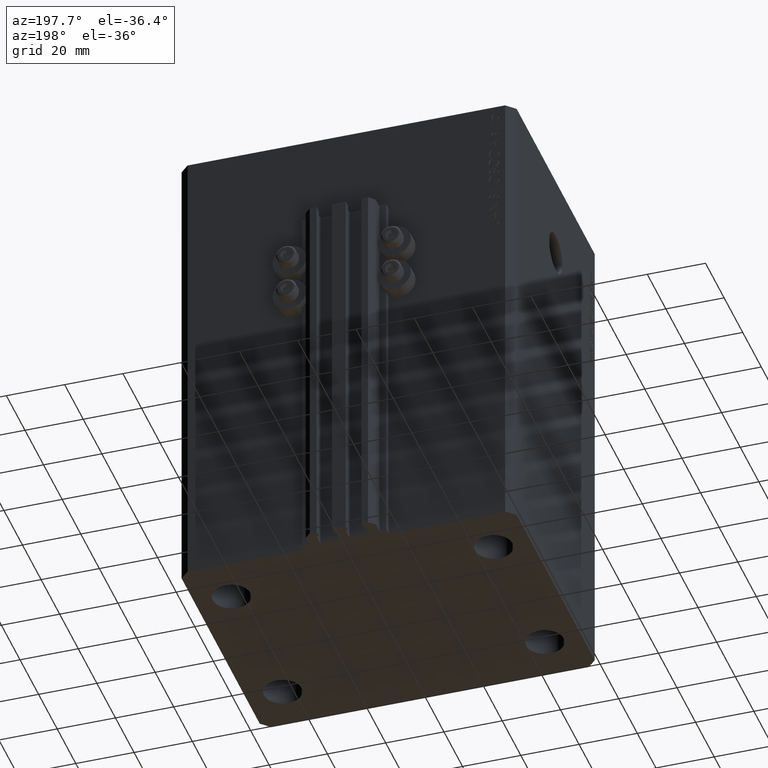
[diagram: clean part render]
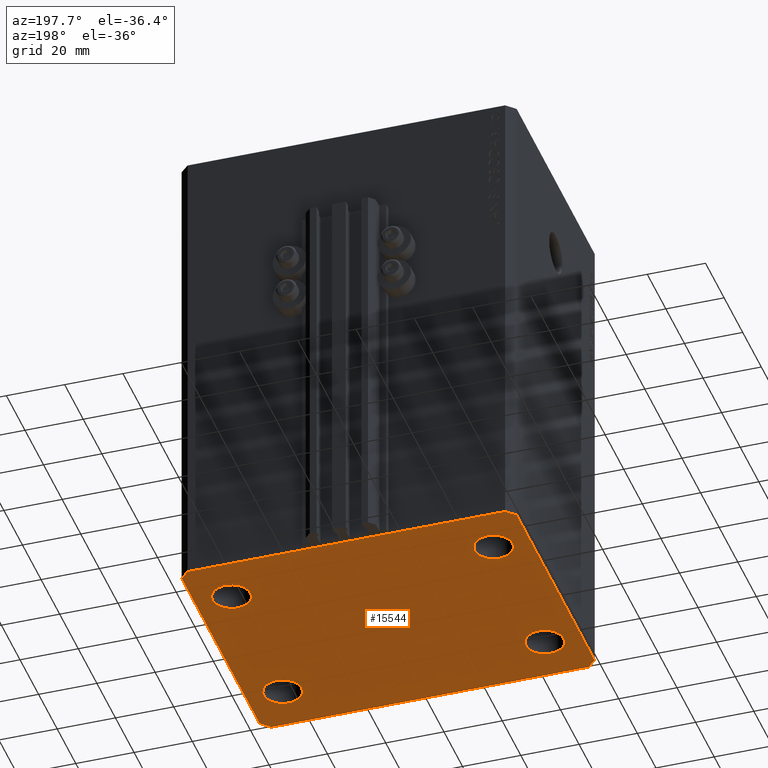
[diagram: same view with one face highlighted and labeled with its STEP entity id]
A machine part, auxiliary view. The second image highlights one B-rep face of the part: STEP entity #15544.
In plain terms, the highlighted planar face has unit normal (0, 0, 1).
Its self-contained STEP definition (entity closure, byte-faithful):
#29 = DIRECTION ( 'NONE',  ( 1.000000000000000000, 0.000000000000000000, 0.000000000000000000 ) ) ;
#97 = LINE ( 'NONE', #30134, #329 ) ;
#329 = VECTOR ( 'NONE', #15539, 1000.000000000000000 ) ;
#335 = CARTESIAN_POINT ( 'NONE',  ( 54.50000000000000711, -44.99999999999998579, -165.0000000000000000 ) ) ;
#509 = DIRECTION ( 'NONE',  ( 1.000000000000000000, 0.000000000000000000, 0.000000000000000000 ) ) ;
#768 = VECTOR ( 'NONE', #4715, 1000.000000000000114 ) ;
#902 = LINE ( 'NONE', #11601, #3158 ) ;
#1032 = VECTOR ( 'NONE', #18781, 1000.000000000000000 ) ;
#1613 = DIRECTION ( 'NONE',  ( -0.000000000000000000, -0.000000000000000000, -1.000000000000000000 ) ) ;
#1905 = FACE_OUTER_BOUND ( 'NONE', #5053, .T. ) ;
#2142 = FACE_BOUND ( 'NONE', #23043, .T. ) ;
#2665 = DIRECTION ( 'NONE',  ( -1.000000000000000000, -2.546383084002638829E-16, 0.000000000000000000 ) ) ;
#2806 = CARTESIAN_POINT ( 'NONE',  ( 54.50000000000000711, -44.99999999999998579, -165.0000000000000000 ) ) ;
#3158 = VECTOR ( 'NONE', #11363, 1000.000000000000000 ) ;
#3187 = CIRCLE ( 'NONE', #19153, 6.499999999999999112 ) ;
#3587 = VERTEX_POINT ( 'NONE', #40093 ) ;
#3618 = DIRECTION ( 'NONE',  ( -0.000000000000000000, -0.000000000000000000, -1.000000000000000000 ) ) ;
#4056 = CIRCLE ( 'NONE', #33793, 6.499999999999999112 ) ;
#4715 = DIRECTION ( 'NONE',  ( 0.7071067811865491270, -0.7071067811865459074, 0.000000000000000000 ) ) ;
#4777 = FACE_BOUND ( 'NONE', #10311, .T. ) ;
#4945 = VERTEX_POINT ( 'NONE', #39530 ) ;
#5053 = EDGE_LOOP ( 'NONE', ( #8453, #23315, #37221, #9098, #7180, #26816, #31261, #18402 ) ) ;
#5285 = LINE ( 'NONE', #23627, #42172 ) ;
#5586 = CARTESIAN_POINT ( 'NONE',  ( -54.50000000000000711, -45.00000000000000000, -165.0000000000000000 ) ) ;
#5721 = CARTESIAN_POINT ( 'NONE',  ( -54.49999999999999289, 45.00000000000000000, -165.0000000000000000 ) ) ;
#6571 = VERTEX_POINT ( 'NONE', #5721 ) ;
#6626 = CARTESIAN_POINT ( 'NONE',  ( 44.99999999999998579, -27.50000000000000355, -165.0000000000000000 ) ) ;
#6715 = AXIS2_PLACEMENT_3D ( 'NONE', #41295, #40813, #22619 ) ;
#6938 = DIRECTION ( 'NONE',  ( -0.000000000000000000, -0.000000000000000000, -1.000000000000000000 ) ) ;
#7180 = ORIENTED_EDGE ( 'NONE', *, *, #26905, .F. ) ;
#7397 = ORIENTED_EDGE ( 'NONE', *, *, #27027, .F. ) ;
#7491 = ORIENTED_EDGE ( 'NONE', *, *, #29972, .F. ) ;
#7814 = LINE ( 'NONE', #19241, #768 ) ;
#8453 = ORIENTED_EDGE ( 'NONE', *, *, #25894, .F. ) ;
#9098 = ORIENTED_EDGE ( 'NONE', *, *, #26597, .F. ) ;
#9272 = DIRECTION ( 'NONE',  ( 0.000000000000000000, 0.000000000000000000, 1.000000000000000000 ) ) ;
#9774 = EDGE_CURVE ( 'NONE', #37762, #9792, #44759, .T. ) ;
#9792 = VERTEX_POINT ( 'NONE', #40820 ) ;
#10311 = EDGE_LOOP ( 'NONE', ( #7397, #28444 ) ) ;
#11363 = DIRECTION ( 'NONE',  ( -2.478176394252581141E-16, -1.000000000000000000, 0.000000000000000000 ) ) ;
#11424 = CARTESIAN_POINT ( 'NONE',  ( 57.50000000000055422, 41.99999999999997868, -165.0000000000000000 ) ) ;
#11601 = CARTESIAN_POINT ( 'NONE',  ( -57.49999999999998579, 42.00000000000000711, -165.0000000000000000 ) ) ;
#12042 = AXIS2_PLACEMENT_3D ( 'NONE', #21504, #3618, #509 ) ;
#12668 = EDGE_CURVE ( 'NONE', #22801, #39469, #28815, .T. ) ;
#13569 = CARTESIAN_POINT ( 'NONE',  ( 44.99999999999998579, -27.50000000000000355, -165.0000000000000000 ) ) ;
#13805 = CARTESIAN_POINT ( 'NONE',  ( -57.50000000000000711, -42.00000000000000711, -165.0000000000000000 ) ) ;
#13819 = CARTESIAN_POINT ( 'NONE',  ( 38.49999999999998579, -27.50000000000000355, -165.0000000000000000 ) ) ;
#14339 = CIRCLE ( 'NONE', #12042, 6.499999999999999112 ) ;
#14760 = VERTEX_POINT ( 'NONE', #13805 ) ;
#14782 = LINE ( 'NONE', #11424, #31442 ) ;
#15220 = ORIENTED_EDGE ( 'NONE', *, *, #32998, .F. ) ;
#15539 = DIRECTION ( 'NONE',  ( 6.443258625056715108E-15, 1.000000000000000000, 0.000000000000000000 ) ) ;
#15544 = ADVANCED_FACE ( 'NONE', ( #4777, #19302, #42026, #2142, #1905 ), #34590, .F. ) ;
#15582 = VERTEX_POINT ( 'NONE', #20981 ) ;
#15758 = CARTESIAN_POINT ( 'NONE',  ( 51.50000000000000000, 27.49999999999999289, -165.0000000000000000 ) ) ;
#16144 = CIRCLE ( 'NONE', #41357, 6.499999999999999112 ) ;
#16181 = AXIS2_PLACEMENT_3D ( 'NONE', #18364, #6938, #29 ) ;
#16657 = DIRECTION ( 'NONE',  ( 1.000000000000000000, 0.000000000000000000, -0.000000000000000000 ) ) ;
#16951 = LINE ( 'NONE', #31539, #19251 ) ;
#17533 = ORIENTED_EDGE ( 'NONE', *, *, #18232, .F. ) ;
#17691 = CARTESIAN_POINT ( 'NONE',  ( -45.00000000000000000, 27.49999999999999645, -165.0000000000000000 ) ) ;
#18232 = EDGE_CURVE ( 'NONE', #3587, #37032, #3187, .T. ) ;
#18364 = CARTESIAN_POINT ( 'NONE',  ( -45.00000000000000000, 27.49999999999999645, -165.0000000000000000 ) ) ;
#18402 = ORIENTED_EDGE ( 'NONE', *, *, #25880, .F. ) ;
#18587 = DIRECTION ( 'NONE',  ( 1.000000000000000000, 0.000000000000000000, 0.000000000000000000 ) ) ;
#18781 = DIRECTION ( 'NONE',  ( 1.000000000000000000, 1.273191542001326317E-16, 0.000000000000000000 ) ) ;
#19153 = AXIS2_PLACEMENT_3D ( 'NONE', #6626, #20215, #25667 ) ;
#19241 = CARTESIAN_POINT ( 'NONE',  ( -57.50000000000000711, -42.00000000000000711, -165.0000000000000000 ) ) ;
#19251 = VECTOR ( 'NONE', #24343, 1000.000000000000000 ) ;
#19302 = FACE_BOUND ( 'NONE', #28934, .T. ) ;
#19964 = DIRECTION ( 'NONE',  ( 1.000000000000000000, 0.000000000000000000, 0.000000000000000000 ) ) ;
#20215 = DIRECTION ( 'NONE',  ( -0.000000000000000000, -0.000000000000000000, -1.000000000000000000 ) ) ;
#20981 = CARTESIAN_POINT ( 'NONE',  ( -51.50000000000000000, 27.49999999999999645, -165.0000000000000000 ) ) ;
#21504 = CARTESIAN_POINT ( 'NONE',  ( 45.00000000000000000, 27.49999999999999289, -165.0000000000000000 ) ) ;
#21560 = CIRCLE ( 'NONE', #16181, 6.499999999999999112 ) ;
#22129 = LINE ( 'NONE', #29554, #1032 ) ;
#22246 = DIRECTION ( 'NONE',  ( 0.7071067811865483499, 0.7071067811865466846, 0.000000000000000000 ) ) ;
#22395 = DIRECTION ( 'NONE',  ( -0.000000000000000000, -0.000000000000000000, -1.000000000000000000 ) ) ;
#22619 = DIRECTION ( 'NONE',  ( 1.000000000000000000, 0.000000000000000000, 0.000000000000000000 ) ) ;
#22629 = DIRECTION ( 'NONE',  ( -0.7071067811865369146, 0.7071067811865581199, 0.000000000000000000 ) ) ;
#22801 = VERTEX_POINT ( 'NONE', #34938 ) ;
#23007 = DIRECTION ( 'NONE',  ( -0.000000000000000000, -0.000000000000000000, -1.000000000000000000 ) ) ;
#23043 = EDGE_LOOP ( 'NONE', ( #28628, #35783 ) ) ;
#23315 = ORIENTED_EDGE ( 'NONE', *, *, #26062, .F. ) ;
#23606 = AXIS2_PLACEMENT_3D ( 'NONE', #37958, #9272, #16657 ) ;
#23627 = CARTESIAN_POINT ( 'NONE',  ( 54.50000000000059686, 45.00000000000002842, -165.0000000000000000 ) ) ;
#24218 = EDGE_CURVE ( 'NONE', #35993, #15582, #16144, .T. ) ;
#24343 = DIRECTION ( 'NONE',  ( -0.7071067811865483499, -0.7071067811865466846, 0.000000000000000000 ) ) ;
#25667 = DIRECTION ( 'NONE',  ( 1.000000000000000000, 0.000000000000000000, 0.000000000000000000 ) ) ;
#25880 = EDGE_CURVE ( 'NONE', #6571, #4945, #16951, .T. ) ;
#25894 = EDGE_CURVE ( 'NONE', #44727, #6571, #5285, .T. ) ;
#25954 = EDGE_CURVE ( 'NONE', #15582, #35993, #21560, .T. ) ;
#26062 = EDGE_CURVE ( 'NONE', #44049, #44727, #14782, .T. ) ;
#26597 = EDGE_CURVE ( 'NONE', #31213, #34319, #33475, .T. ) ;
#26816 = ORIENTED_EDGE ( 'NONE', *, *, #40799, .F. ) ;
#26905 = EDGE_CURVE ( 'NONE', #41174, #31213, #22129, .T. ) ;
#27027 = EDGE_CURVE ( 'NONE', #9792, #37762, #4056, .T. ) ;
#27931 = CARTESIAN_POINT ( 'NONE',  ( -38.50000000000000000, 27.49999999999999645, -165.0000000000000000 ) ) ;
#28444 = ORIENTED_EDGE ( 'NONE', *, *, #9774, .F. ) ;
#28628 = ORIENTED_EDGE ( 'NONE', *, *, #24218, .F. ) ;
#28636 = EDGE_CURVE ( 'NONE', #34319, #44049, #97, .T. ) ;
#28646 = CARTESIAN_POINT ( 'NONE',  ( -51.49999999999998579, -27.50000000000000355, -165.0000000000000000 ) ) ;
#28702 = DIRECTION ( 'NONE',  ( 1.000000000000000000, 0.000000000000000000, 0.000000000000000000 ) ) ;
#28719 = AXIS2_PLACEMENT_3D ( 'NONE', #40114, #22395, #18587 ) ;
#28815 = CIRCLE ( 'NONE', #6715, 6.499999999999999112 ) ;
#28934 = EDGE_LOOP ( 'NONE', ( #17533, #7491 ) ) ;
#28935 = DIRECTION ( 'NONE',  ( -0.000000000000000000, -0.000000000000000000, -1.000000000000000000 ) ) ;
#29520 = AXIS2_PLACEMENT_3D ( 'NONE', #13569, #23007, #30427 ) ;
#29554 = CARTESIAN_POINT ( 'NONE',  ( -54.50000000000000711, -45.00000000000000000, -165.0000000000000000 ) ) ;
#29972 = EDGE_CURVE ( 'NONE', #37032, #3587, #34860, .T. ) ;
#30134 = CARTESIAN_POINT ( 'NONE',  ( 57.50000000000000711, -41.99999999999998579, -165.0000000000000000 ) ) ;
#30427 = DIRECTION ( 'NONE',  ( 1.000000000000000000, 0.000000000000000000, 0.000000000000000000 ) ) ;
#31213 = VERTEX_POINT ( 'NONE', #2806 ) ;
#31261 = ORIENTED_EDGE ( 'NONE', *, *, #44456, .F. ) ;
#31442 = VECTOR ( 'NONE', #22629, 1000.000000000000000 ) ;
#31539 = CARTESIAN_POINT ( 'NONE',  ( -54.49999999999999289, 45.00000000000000000, -165.0000000000000000 ) ) ;
#32998 = EDGE_CURVE ( 'NONE', #39469, #22801, #14339, .T. ) ;
#33252 = ORIENTED_EDGE ( 'NONE', *, *, #12668, .F. ) ;
#33475 = LINE ( 'NONE', #335, #41427 ) ;
#33793 = AXIS2_PLACEMENT_3D ( 'NONE', #41960, #1613, #19964 ) ;
#34319 = VERTEX_POINT ( 'NONE', #36428 ) ;
#34590 = PLANE ( 'NONE',  #23606 ) ;
#34860 = CIRCLE ( 'NONE', #29520, 6.499999999999999112 ) ;
#34938 = CARTESIAN_POINT ( 'NONE',  ( 38.50000000000000000, 27.49999999999999289, -165.0000000000000000 ) ) ;
#35783 = ORIENTED_EDGE ( 'NONE', *, *, #25954, .F. ) ;
#35993 = VERTEX_POINT ( 'NONE', #27931 ) ;
#36138 = EDGE_LOOP ( 'NONE', ( #15220, #33252 ) ) ;
#36428 = CARTESIAN_POINT ( 'NONE',  ( 57.50000000000000711, -41.99999999999998579, -165.0000000000000000 ) ) ;
#36702 = CARTESIAN_POINT ( 'NONE',  ( 57.50000000000055422, 41.99999999999997868, -165.0000000000000000 ) ) ;
#37032 = VERTEX_POINT ( 'NONE', #13819 ) ;
#37221 = ORIENTED_EDGE ( 'NONE', *, *, #28636, .F. ) ;
#37762 = VERTEX_POINT ( 'NONE', #28646 ) ;
#37958 = CARTESIAN_POINT ( 'NONE',  ( 0.000000000000000000, 0.000000000000000000, -165.0000000000000000 ) ) ;
#39469 = VERTEX_POINT ( 'NONE', #15758 ) ;
#39530 = CARTESIAN_POINT ( 'NONE',  ( -57.49999999999998579, 42.00000000000000711, -165.0000000000000000 ) ) ;
#40093 = CARTESIAN_POINT ( 'NONE',  ( 51.49999999999998579, -27.50000000000000355, -165.0000000000000000 ) ) ;
#40114 = CARTESIAN_POINT ( 'NONE',  ( -44.99999999999998579, -27.50000000000000355, -165.0000000000000000 ) ) ;
#40241 = CARTESIAN_POINT ( 'NONE',  ( 54.50000000000059686, 45.00000000000002842, -165.0000000000000000 ) ) ;
#40799 = EDGE_CURVE ( 'NONE', #14760, #41174, #7814, .T. ) ;
#40813 = DIRECTION ( 'NONE',  ( -0.000000000000000000, -0.000000000000000000, -1.000000000000000000 ) ) ;
#40820 = CARTESIAN_POINT ( 'NONE',  ( -38.49999999999998579, -27.50000000000000355, -165.0000000000000000 ) ) ;
#41174 = VERTEX_POINT ( 'NONE', #5586 ) ;
#41295 = CARTESIAN_POINT ( 'NONE',  ( 45.00000000000000000, 27.49999999999999289, -165.0000000000000000 ) ) ;
#41357 = AXIS2_PLACEMENT_3D ( 'NONE', #17691, #28935, #28702 ) ;
#41427 = VECTOR ( 'NONE', #22246, 1000.000000000000000 ) ;
#41960 = CARTESIAN_POINT ( 'NONE',  ( -44.99999999999998579, -27.50000000000000355, -165.0000000000000000 ) ) ;
#42026 = FACE_BOUND ( 'NONE', #36138, .T. ) ;
#42172 = VECTOR ( 'NONE', #2665, 1000.000000000000000 ) ;
#44049 = VERTEX_POINT ( 'NONE', #36702 ) ;
#44456 = EDGE_CURVE ( 'NONE', #4945, #14760, #902, .T. ) ;
#44727 = VERTEX_POINT ( 'NONE', #40241 ) ;
#44759 = CIRCLE ( 'NONE', #28719, 6.499999999999999112 ) ;